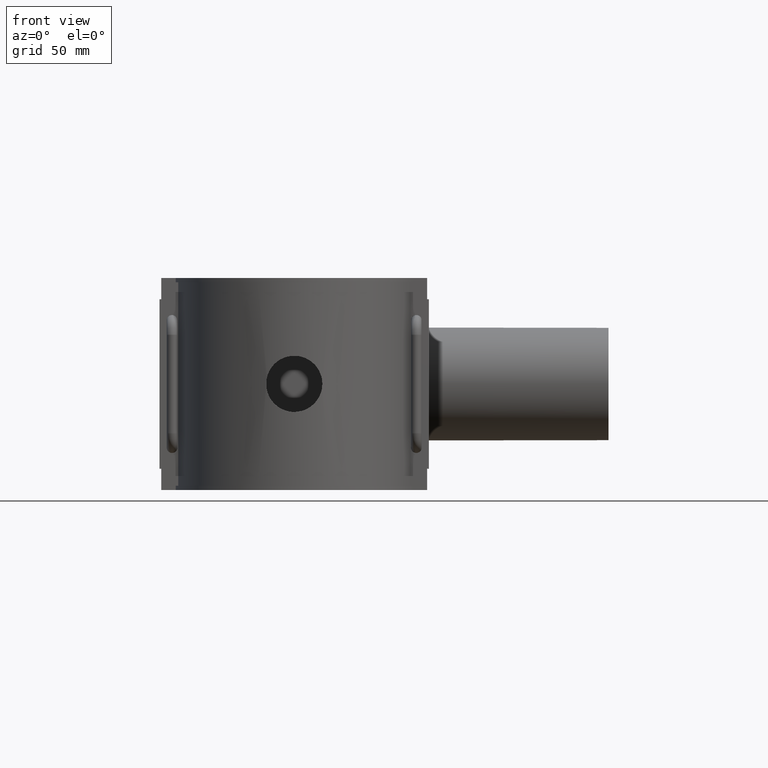
[diagram: clean part render]
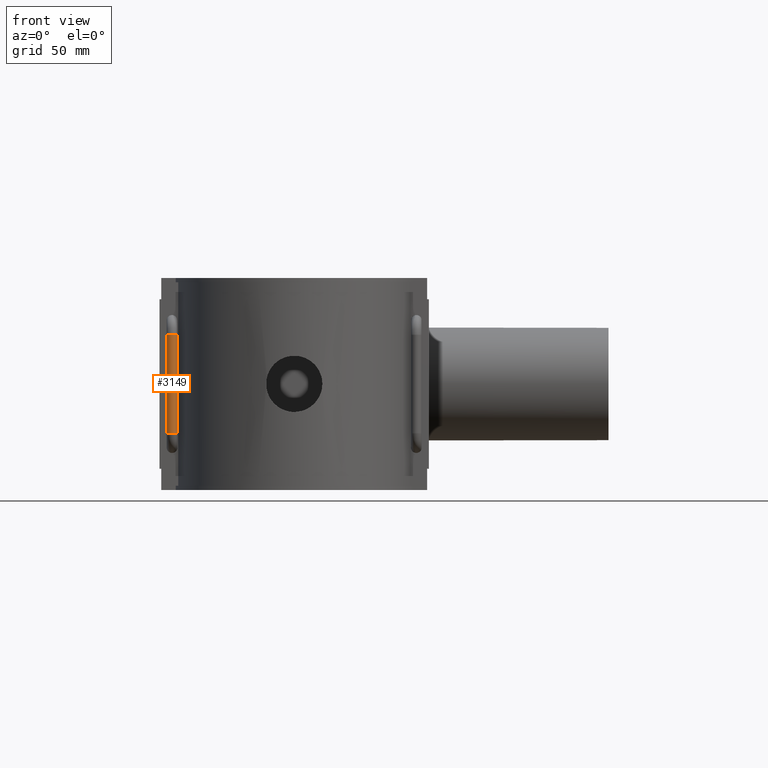
[diagram: same view with one face highlighted and labeled with its STEP entity id]
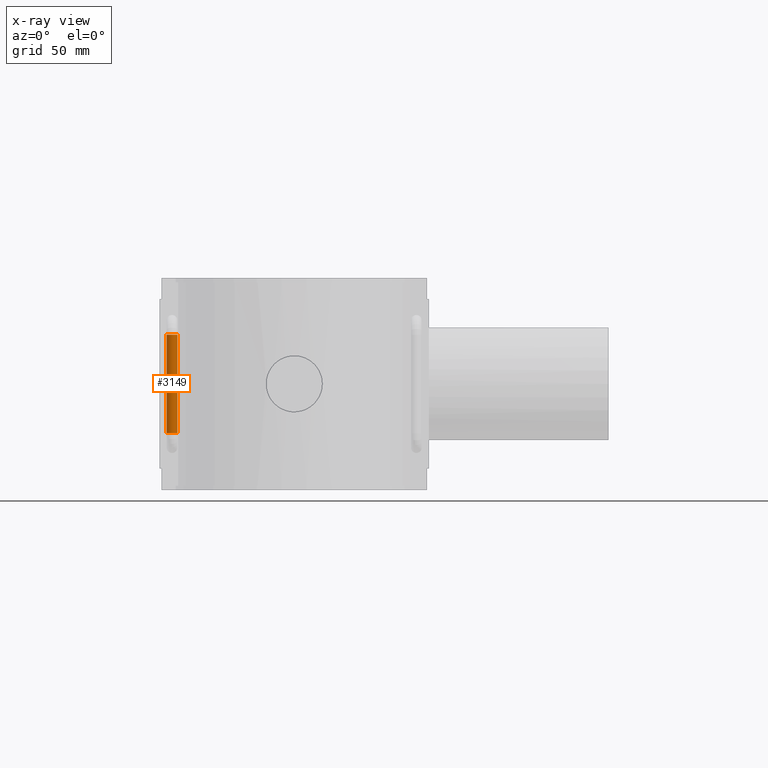
[diagram: x-ray of the same camera — body ghosted, the highlighted face saturated]
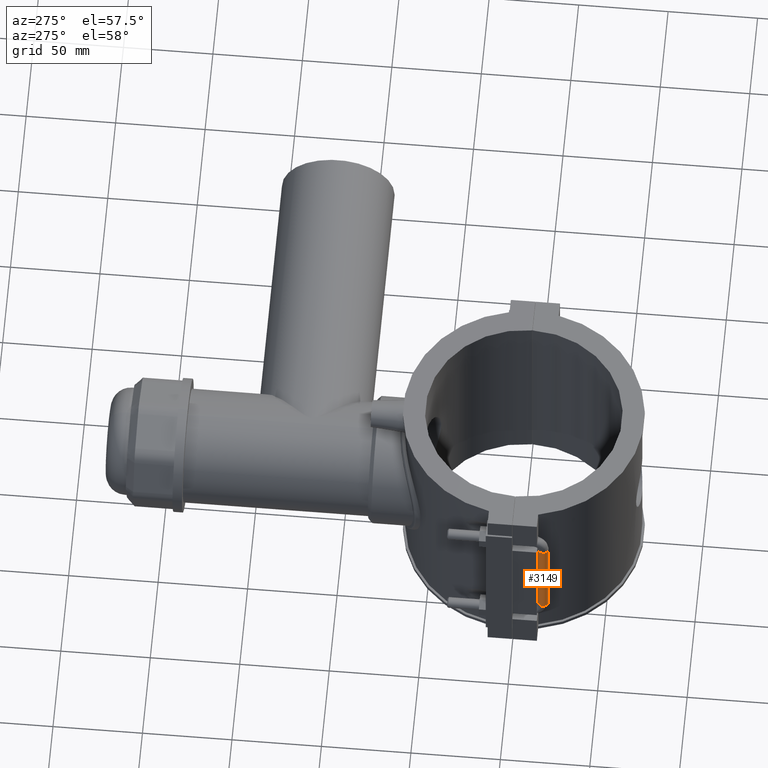
[diagram: same view with one face highlighted and labeled with its STEP entity id]
A machine part, front view. The second image highlights one B-rep face of the part: STEP entity #3149.
The next image is the same camera in x-ray: the body ghosted, the highlighted face saturated — about 0% of this face is hidden behind the body in this view.
A second angle (auxiliary view) of the same face is appended — the face is thin or edge-on in the first view.
In plain terms, the highlighted cylindrical surface (bore or boss wall) has radius 3 mm, axis along (0, -0, 1).
Its self-contained STEP definition (entity closure, byte-faithful):
#114=LINE('',#5299,#393);
#393=VECTOR('',#3776,54.8);
#740=CYLINDRICAL_SURFACE('',#3419,3.);
#880=FACE_OUTER_BOUND('',#1110,.T.);
#1110=EDGE_LOOP('',(#2595,#2596,#2597,#2598));
#1255=CIRCLE('',#3388,3.);
#1259=CIRCLE('',#3393,3.);
#1382=VERTEX_POINT('',#5285);
#1383=VERTEX_POINT('',#5298);
#1714=EDGE_CURVE('',#1383,#1382,#114,.T.);
#1877=EDGE_CURVE('',#1383,#1383,#1255,.T.);
#1887=EDGE_CURVE('',#1382,#1382,#1259,.T.);
#2595=ORIENTED_EDGE('',*,*,#1887,.F.);
#2596=ORIENTED_EDGE('',*,*,#1714,.F.);
#2597=ORIENTED_EDGE('',*,*,#1877,.T.);
#2598=ORIENTED_EDGE('',*,*,#1714,.T.);
#3149=ADVANCED_FACE('',(#880),#740,.T.);
#3388=AXIS2_PLACEMENT_3D('',#6020,#4046,#4047);
#3393=AXIS2_PLACEMENT_3D('',#6098,#4056,#4057);
#3419=AXIS2_PLACEMENT_3D('',#6181,#4122,#4123);
#3776=DIRECTION('',(0.,-1.62076353959877E-16,1.));
#4046=DIRECTION('center_axis',(0.,6.12323399573677E-17,1.));
#4047=DIRECTION('ref_axis',(1.,0.,0.));
#4056=DIRECTION('center_axis',(0.,6.12323399573677E-17,1.));
#4057=DIRECTION('ref_axis',(1.,0.,0.));
#4122=DIRECTION('center_axis',(0.,-1.62076353959877E-16,1.));
#4123=DIRECTION('ref_axis',(1.,0.,0.));
#5285=CARTESIAN_POINT('',(-68.,-13.75,27.4));
#5298=CARTESIAN_POINT('',(-68.,-13.75,-27.4));
#5299=CARTESIAN_POINT('',(-68.,-13.75,27.4));
#6020=CARTESIAN_POINT('Origin',(-68.,-16.7499999999993,-27.4));
#6098=CARTESIAN_POINT('Origin',(-68.,-16.7499999999993,27.4));
#6181=CARTESIAN_POINT('Origin',(-68.,-16.7499999999993,27.4));